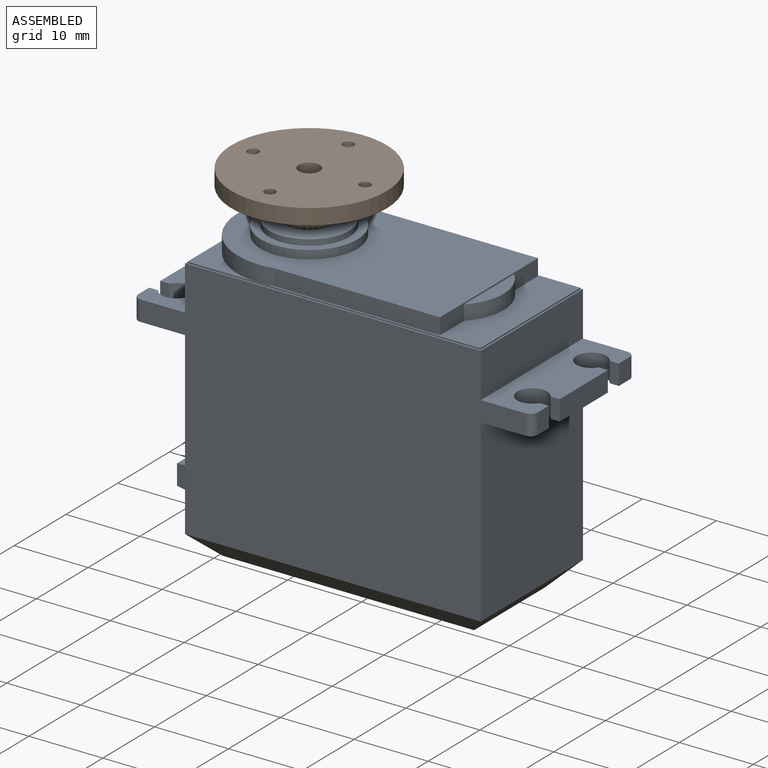
[diagram: assembled view]
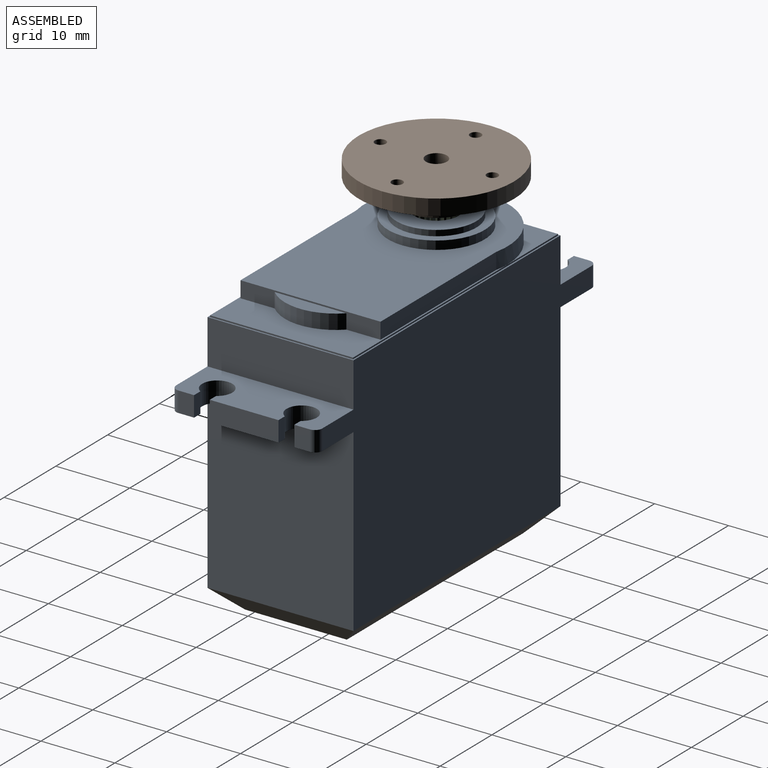
[diagram: assembled view, second angle]
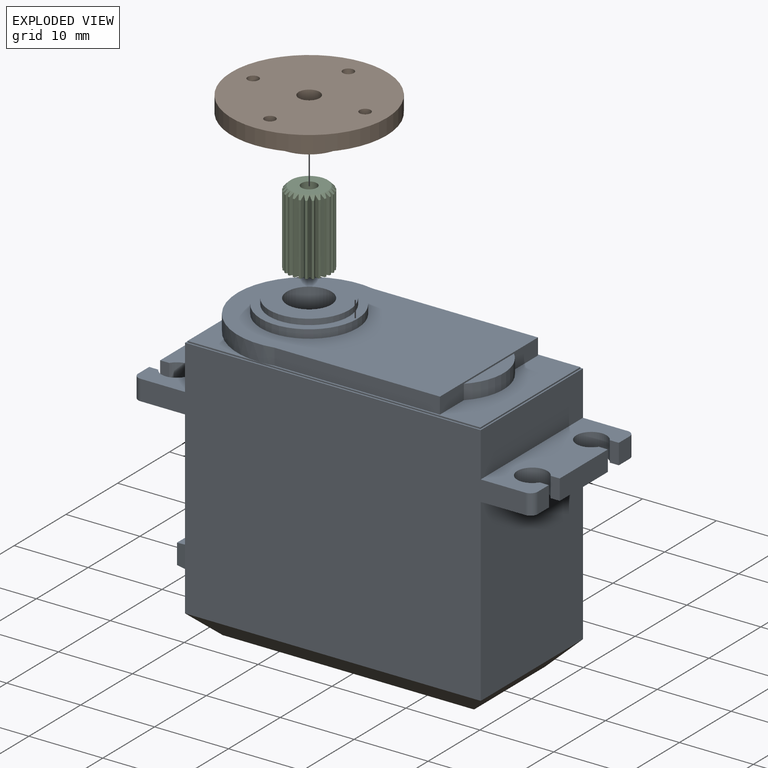
[diagram: exploded view]
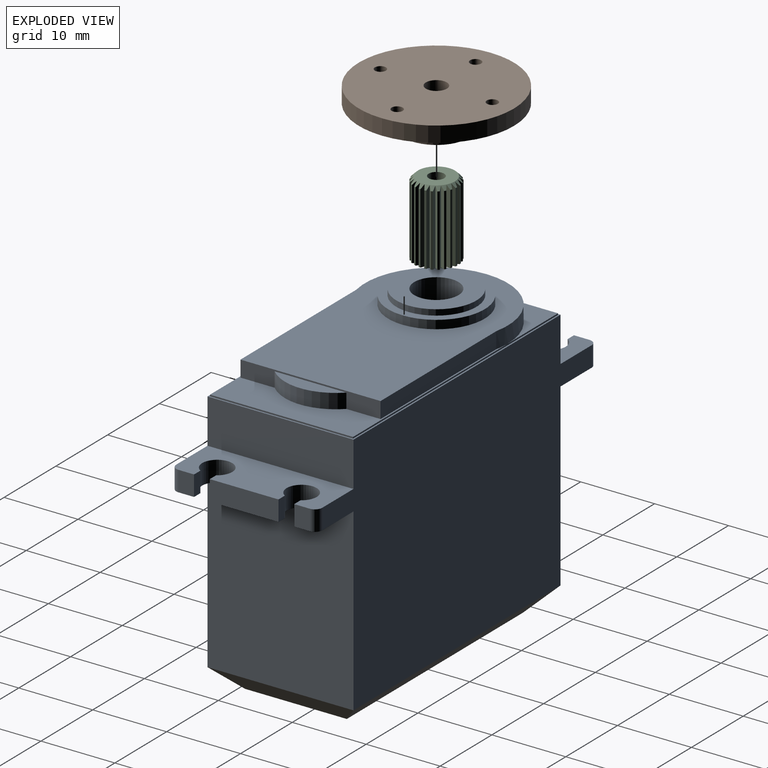
[diagram: exploded view, second angle]
ASSEMBLY  parts=3 mates=2
PART A: 63 faces, bbox 54.1x19.8x40.4 mm
  f0: plane 29.93x19.35mm, normal (0,0,1), area 104.2mm2, adj f10,f11,f13,f37,f38,f39,f40,f42
  f1: plane 9.68x9.68mm, normal (0,0,1), area 20.1mm2, adj f11,f12,f37
  f2: plane 24.33x19.75mm, normal (-1,0,0), area 452.4mm2, adj f6,f8,f36,f52,f58,f59,f60,f61
  f3: plane 24.33x19.75mm, normal (1,0,0), area 480.4mm2, adj f6,f8,f25,f51
  f4: plane 40x19.75mm, normal (0,0,1), area 23.7mm2, adj f5,f6,f7,f8,f10,f11,f12,f13
  f5: plane 19.75x6.03mm, normal (1,0,0), area 119mm2, adj f4,f6,f8,f24
  f6: plane 52.05x33.1mm, normal (0,1,0), area 1357.1mm2, adj f2,f3,f4,f5,f7,f24,f25,f35
  f7: plane 19.75x6.03mm, normal (-1,0,0), area 119mm2, adj f4,f6,f8,f35
  f8: plane 52.05x33.1mm, normal (0,-1,0), area 1357.1mm2, adj f2,f3,f4,f5,f7,f24,f25,f35
  f9: plane 34x13.75mm, normal (0,0,-1), area 467.5mm2, adj f50,f51,f52,f53
  f10: plane 19.35x0.2mm, normal (1,0,0), area 3.9mm2, adj f0,f4,f11,f13
  f11: plane 39.6x0.2mm, normal (0,1,0), area 7.9mm2, adj f0,f1,f4,f10,f12
  f12: plane 19.35x0.2mm, normal (-1,0,0), area 3.9mm2, adj f1,f4,f11,f13,f14
  f13: plane 39.6x0.2mm, normal (0,-1,0), area 7.9mm2, adj f0,f4,f10,f12,f14
  f14: plane 9.68x9.68mm, normal (0,0,1), area 20.1mm2, adj f12,f13,f37
  f15: plane 2.75x2.1mm, normal (1,0,0), area 5.8mm2, adj f16,f24,f25,f54
  f16: plane 2.75x1.22mm, normal (0,1,0), area 3.4mm2, adj f15,f17,f24,f25
  f17: cylinder r=2.04mm len=4.08mm, axis (0,0,-1), area 29.1mm2, adj f16,f18,f24,f25
  f18: plane 2.75x1.22mm, normal (0,-1,0), area 3.4mm2, adj f17,f19,f24,f25
  f19: plane 9.3x2.75mm, normal (1,0,0), area 25.6mm2, adj f18,f20,f24,f25
  f20: plane 2.75x1.22mm, normal (0,1,0), area 3.4mm2, adj f19,f21,f24,f25
  f21: cylinder r=2.04mm len=4.08mm, axis (0,0,-1), area 29.1mm2, adj f20,f22,f24,f25
  f22: plane 2.75x1.22mm, normal (0,-1,0), area 3.4mm2, adj f21,f23,f24,f25
  f23: plane 2.75x2.1mm, normal (1,0,0), area 5.8mm2, adj f22,f24,f25,f55
  f24: plane 19.75x7.03mm, normal (0,0,1), area 107.9mm2, adj f5,f6,f8,f15,f16,f17,f18,f19
  f25: plane 19.75x7.03mm, normal (0,0,-1), area 107.9mm2, adj f3,f6,f8,f15,f16,f17,f18,f19
  f26: plane 2.75x2.1mm, normal (-1,0,0), area 5.8mm2, adj f27,f35,f36,f57
  f27: plane 2.75x1.22mm, normal (0,-1,0), area 3.4mm2, adj f26,f28,f35,f36
  f28: cylinder r=2.04mm len=4.08mm, axis (0,0,-1), area 29.1mm2, adj f27,f29,f35,f36
  f29: plane 2.75x1.22mm, normal (0,1,0), area 3.4mm2, adj f28,f30,f35,f36
  f30: plane 9.3x2.75mm, normal (-1,0,0), area 25.6mm2, adj f29,f31,f35,f36
  f31: plane 2.75x1.22mm, normal (0,-1,0), area 3.4mm2, adj f30,f32,f35,f36
  f32: cylinder r=2.04mm len=4.08mm, axis (0,0,-1), area 29.1mm2, adj f31,f33,f35,f36
  f33: plane 2.75x1.22mm, normal (0,1,0), area 3.4mm2, adj f32,f34,f35,f36
  f34: plane 2.75x2.1mm, normal (-1,0,0), area 5.8mm2, adj f33,f35,f36,f56
  f35: plane 19.75x7.03mm, normal (0,0,1), area 107.9mm2, adj f6,f7,f8,f26,f27,f28,f29,f30
  f36: plane 19.75x7.03mm, normal (0,0,-1), area 107.9mm2, adj f2,f6,f8,f26,f27,f28,f29,f30
  f37: cylinder r=9.67mm len=19.35mm, axis (0,0,-1), area 75.5mm2, adj f0,f1,f14,f38,f40,f41
  f38: plane 22.37x2.2mm, normal (0,-1,0), area 49.2mm2, adj f0,f37,f39,f41
  f39: plane 18.95x2.2mm, normal (1,0,0), area 22.3mm2, adj f0,f38,f40,f41,f42,f43
  f40: plane 22.37x2.2mm, normal (0,1,0), area 49.2mm2, adj f0,f37,f39,f41
  f41: plane 34x19.35mm, normal (0,0,1), area 474.2mm2, adj f37,f38,f39,f40,f44
  f42: cylinder r=6.88mm len=9.7mm, axis (0,0,-1), area 21.5mm2, adj f0,f39,f43
  f43: plane 9.7x2mm, normal (0,0,1), area 13.4mm2, adj f39,f42
  f44: cylinder r=6.54mm len=13.08mm, axis (0,0,-1), area 47.2mm2, adj f41,f45
  f45: plane 13.08x13.08mm, normal (0,0,1), area 41.8mm2, adj f44,f46
  f46: cylinder r=5.42mm len=10.85mm, axis (0,0,-1), area 26.4mm2, adj f45,f47
  f47: plane 10.85x10.85mm, normal (0,0,1), area 64.2mm2, adj f46,f48
  f48: cylinder r=3mm len=6mm, axis (0,0,1), area 113.1mm2, adj f47,f49
  f49: plane 6x6mm, normal (0,0,1), area 28.3mm2, adj f48
  f50: plane 40x3mm, normal (0,-0.71,-0.71), area 157mm2, adj f8,f9,f51,f52
  f51: plane 19.75x3mm, normal (0.71,0,-0.71), area 71.1mm2, adj f3,f9,f50,f53
  f52: plane 19.75x3mm, normal (-0.71,0,-0.71), area 71.1mm2, adj f2,f9,f50,f53
  f53: plane 40x3mm, normal (0,0.71,-0.71), area 157mm2, adj f6,f9,f51,f52
  f54: cylinder r=1mm len=2.75mm, axis (0,0,-1), area 4.3mm2, adj f8,f15,f24,f25
  f55: cylinder r=1mm len=2.75mm, axis (0,0,1), area 4.3mm2, adj f6,f23,f24,f25
  f56: cylinder r=1mm len=2.75mm, axis (0,0,1), area 4.3mm2, adj f8,f34,f35,f36
  f57: cylinder r=1mm len=2.75mm, axis (0,0,-1), area 4.3mm2, adj f6,f26,f35,f36
  f58: plane 6x4mm, normal (-0.1,-0.99,0), area 20.3mm2, adj f2,f59,f61,f62
  f59: plane 7x6mm, normal (-0.1,0,0.99), area 38.4mm2, adj f2,f58,f60,f62
  f60: plane 6x4mm, normal (-0.1,0.99,0), area 20.3mm2, adj f2,f59,f61,f62
  f61: plane 7x6mm, normal (-0.1,0,-0.99), area 38.4mm2, adj f2,f58,f60,f62
  f62: plane 5.74x2.74mm, normal (-1,0,0), area 15.7mm2, adj f58,f59,f60,f61
PART B: 86 faces, bbox 21x5.2x21 mm
  f0: plane 6x5.99mm, normal (0,-1,0), area 18.8mm2, adj f1,f2,f3,f4,f5,f6,f7,f8
  f1: cylinder r=3mm len=3.08mm, axis (0,1,0), area 0.8mm2, adj f0,f35,f36,f85
  f2: cylinder r=3mm len=3.08mm, axis (0,1,0), area 0.8mm2, adj f0,f35,f83,f84
  f3: cylinder r=3mm len=3.08mm, axis (0,1,0), area 0.8mm2, adj f0,f35,f81,f82
  f4: cylinder r=3mm len=3.08mm, axis (0,1,0), area 0.8mm2, adj f0,f35,f79,f80
  f5: cylinder r=3mm len=3.08mm, axis (0,1,0), area 0.8mm2, adj f0,f35,f77,f78
  f6: cylinder r=3mm len=3.08mm, axis (0,1,0), area 0.8mm2, adj f0,f35,f75,f76
  f7: cylinder r=3mm len=3.08mm, axis (0,1,0), area 0.8mm2, adj f0,f35,f73,f74
  f8: cylinder r=3mm len=3.08mm, axis (0,1,0), area 0.8mm2, adj f0,f35,f71,f72
  f9: cylinder r=3mm len=3.08mm, axis (0,1,0), area 0.8mm2, adj f0,f35,f69,f70
  f10: cylinder r=3mm len=3.08mm, axis (0,1,0), area 0.8mm2, adj f0,f35,f67,f68
  f11: cylinder r=3mm len=3.08mm, axis (0,1,0), area 0.8mm2, adj f0,f35,f65,f66
  f12: cylinder r=3mm len=3.08mm, axis (0,1,0), area 0.8mm2, adj f0,f35,f63,f64
  f13: cylinder r=3mm len=3.08mm, axis (0,1,0), area 0.8mm2, adj f0,f35,f61,f62
  f14: cylinder r=3mm len=3.08mm, axis (0,1,0), area 0.8mm2, adj f0,f35,f59,f60
  f15: cylinder r=3mm len=3.08mm, axis (0,1,0), area 0.8mm2, adj f0,f35,f57,f58
  f16: cylinder r=3mm len=3.08mm, axis (0,1,0), area 0.8mm2, adj f0,f35,f55,f56
  f17: cylinder r=3mm len=3.08mm, axis (0,1,0), area 0.8mm2, adj f0,f35,f53,f54
  f18: cylinder r=3mm len=3.08mm, axis (0,1,0), area 0.8mm2, adj f0,f35,f51,f52
  f19: cylinder r=3mm len=3.08mm, axis (0,1,0), area 0.8mm2, adj f0,f35,f49,f50
  f20: cylinder r=3mm len=3.08mm, axis (0,1,0), area 0.8mm2, adj f0,f35,f47,f48
  f21: cylinder r=3mm len=3.08mm, axis (0,1,0), area 0.8mm2, adj f0,f35,f45,f46
  f22: cylinder r=3mm len=3.08mm, axis (0,1,0), area 0.8mm2, adj f0,f35,f43,f44
  f23: cylinder r=3mm len=3.08mm, axis (0,1,0), area 0.8mm2, adj f0,f35,f41,f42
  f24: cylinder r=3mm len=3.08mm, axis (0,1,0), area 0.8mm2, adj f0,f35,f39,f40
  f25: cylinder r=1.43mm len=2.85mm, axis (0,1,0), area 19mm2, adj f0,f32
  f26: cylinder r=0.75mm len=2.13mm, axis (0,1,0), area 10mm2, adj f31,f32
  f27: cylinder r=0.75mm len=2.13mm, axis (0,1,0), area 10mm2, adj f31,f32
  f28: cylinder r=0.75mm len=2.13mm, axis (0,1,0), area 10mm2, adj f31,f32
  f29: cylinder r=0.75mm len=2.13mm, axis (0,1,0), area 10mm2, adj f31,f32
  f30: cylinder r=10.5mm len=21mm, axis (0,1,0), area 140.2mm2, adj f31,f32
  f31: plane 21x21mm, normal (0,-1,0), area 277.4mm2, adj f26,f27,f28,f29,f30,f34
  f32: plane 21x21mm, normal (0,1,0), area 332.9mm2, adj f25,f26,f27,f28,f29,f30
  f33: cylinder r=3mm len=3.08mm, axis (0,1,0), area 0.8mm2, adj f0,f35,f37,f38
  f34: cylinder r=4.44mm len=8.88mm, axis (0,1,0), area 85.7mm2, adj f31,f35
  f35: plane 8.88x8.88mm, normal (0,-1,0), area 36.7mm2, adj f1,f2,f3,f4,f5,f6,f7,f8
  f36: plane 3.08x0.48mm, normal (-0.89,0,-0.46), area 1.7mm2, adj f0,f1,f35,f37
  f37: plane 3.08x0.48mm, normal (0.89,0,-0.46), area 1.7mm2, adj f0,f33,f35,f36
  f38: plane 3.08x0.52mm, normal (-0.97,0,-0.23), area 1.7mm2, adj f0,f33,f35,f39
  f39: plane 3.08x0.4mm, normal (0.74,0,-0.67), area 1.7mm2, adj f0,f24,f35,f38
  f40: plane 3.08x0.54mm, normal (-1,0,0.02), area 1.7mm2, adj f0,f24,f35,f41
  f41: plane 3.08x0.45mm, normal (0.55,0,-0.83), area 1.7mm2, adj f0,f23,f35,f40
  f42: plane 3.08x0.52mm, normal (-0.96,0,0.27), area 1.7mm2, adj f0,f23,f35,f43
  f43: plane 3.08x0.51mm, normal (0.33,0,-0.94), area 1.7mm2, adj f0,f22,f35,f42
  f44: plane 3.08x0.47mm, normal (-0.87,0,0.5), area 1.7mm2, adj f0,f22,f35,f45
  f45: plane 3.08x0.54mm, normal (0.08,0,-1), area 1.7mm2, adj f0,f21,f35,f44
  f46: plane 3.08x0.39mm, normal (-0.72,0,0.7), area 1.7mm2, adj f0,f21,f35,f47
  f47: plane 3.08x0.53mm, normal (-0.17,0,-0.99), area 1.7mm2, adj f0,f20,f35,f46
  f48: plane 3.08x0.46mm, normal (-0.52,0,0.85), area 1.7mm2, adj f0,f20,f35,f49
  f49: plane 3.08x0.49mm, normal (-0.41,0,-0.91), area 1.7mm2, adj f0,f19,f35,f48
  f50: plane 3.08x0.52mm, normal (-0.29,0,0.96), area 1.7mm2, adj f0,f19,f35,f51
  f51: plane 3.08x0.42mm, normal (-0.62,0,-0.78), area 1.7mm2, adj f0,f18,f35,f50
  f52: plane 3.08x0.54mm, normal (-0.04,0,1), area 1.7mm2, adj f0,f18,f35,f53
  f53: plane 3.08x0.43mm, normal (-0.8,0,-0.6), area 1.7mm2, adj f0,f17,f35,f52
  f54: plane 3.08x0.53mm, normal (0.21,0,0.98), area 1.7mm2, adj f0,f17,f35,f55
  f55: plane 3.08x0.5mm, normal (-0.92,0,-0.39), area 1.7mm2, adj f0,f16,f35,f54
  f56: plane 3.08x0.48mm, normal (0.44,0,0.9), area 1.7mm2, adj f0,f16,f35,f57
  f57: plane 3.08x0.53mm, normal (-0.99,0,-0.15), area 1.7mm2, adj f0,f15,f35,f56
  f58: plane 3.08x0.41mm, normal (0.65,0,0.76), area 1.7mm2, adj f0,f15,f35,f59
  f59: plane 3.08x0.54mm, normal (-0.99,0,0.11), area 1.7mm2, adj f0,f14,f35,f58
  f60: plane 3.08x0.44mm, normal (0.82,0,0.57), area 1.7mm2, adj f0,f14,f35,f61
  f61: plane 3.08x0.5mm, normal (-0.94,0,0.35), area 1.7mm2, adj f0,f13,f35,f60
  f62: plane 3.08x0.5mm, normal (0.94,0,0.35), area 1.7mm2, adj f0,f13,f35,f63
  f63: plane 3.08x0.44mm, normal (-0.82,0,0.57), area 1.7mm2, adj f0,f12,f35,f62
  f64: plane 3.08x0.54mm, normal (0.99,0,0.11), area 1.7mm2, adj f0,f12,f35,f65
  f65: plane 3.08x0.41mm, normal (-0.65,0,0.76), area 1.7mm2, adj f0,f11,f35,f64
  f66: plane 3.08x0.53mm, normal (0.99,0,-0.15), area 1.7mm2, adj f0,f11,f35,f67
  f67: plane 3.08x0.48mm, normal (-0.44,0,0.9), area 1.7mm2, adj f0,f10,f35,f66
  f68: plane 3.08x0.5mm, normal (0.92,0,-0.39), area 1.7mm2, adj f0,f10,f35,f69
  f69: plane 3.08x0.53mm, normal (-0.21,0,0.98), area 1.7mm2, adj f0,f9,f35,f68
  f70: plane 3.08x0.43mm, normal (0.8,0,-0.6), area 1.7mm2, adj f0,f9,f35,f71
  f71: plane 3.08x0.54mm, normal (0.04,0,1), area 1.7mm2, adj f0,f8,f35,f70
  f72: plane 3.08x0.42mm, normal (0.62,0,-0.78), area 1.7mm2, adj f0,f8,f35,f73
  f73: plane 3.08x0.52mm, normal (0.29,0,0.96), area 1.7mm2, adj f0,f7,f35,f72
  f74: plane 3.08x0.49mm, normal (0.41,0,-0.91), area 1.7mm2, adj f0,f7,f35,f75
  f75: plane 3.08x0.46mm, normal (0.52,0,0.85), area 1.7mm2, adj f0,f6,f35,f74
  f76: plane 3.08x0.53mm, normal (0.17,0,-0.99), area 1.7mm2, adj f0,f6,f35,f77
  f77: plane 3.08x0.39mm, normal (0.72,0,0.7), area 1.7mm2, adj f0,f5,f35,f76
  f78: plane 3.08x0.54mm, normal (-0.08,0,-1), area 1.7mm2, adj f0,f5,f35,f79
  f79: plane 3.08x0.47mm, normal (0.87,0,0.5), area 1.7mm2, adj f0,f4,f35,f78
  f80: plane 3.08x0.51mm, normal (-0.33,0,-0.94), area 1.7mm2, adj f0,f4,f35,f81
  f81: plane 3.08x0.52mm, normal (0.96,0,0.27), area 1.7mm2, adj f0,f3,f35,f80
  f82: plane 3.08x0.45mm, normal (-0.55,0,-0.83), area 1.7mm2, adj f0,f3,f35,f83
  f83: plane 3.08x0.54mm, normal (1,0,0.02), area 1.7mm2, adj f0,f2,f35,f82
  f84: plane 3.08x0.4mm, normal (-0.74,0,-0.67), area 1.7mm2, adj f0,f2,f35,f85
  f85: plane 3.08x0.52mm, normal (0.97,0,-0.23), area 1.7mm2, adj f0,f1,f35,f84
PART C: 80 faces, bbox 6x6x10.1 mm
  f0: plane 6x5.99mm, normal (0,0,-1), area 25.2mm2, adj f2,f3,f4,f5,f6,f7,f8,f9
  f1: cone r=2.5mm half-angle=45deg, axis (0,0,-1), area 7.9mm2, adj f2,f3,f4,f5,f6,f7,f8,f9
  f2: cylinder r=3mm len=9.58mm, axis (0,0,-1), area 2.4mm2, adj f0,f1,f74,f77
  f3: cylinder r=3mm len=9.58mm, axis (0,0,-1), area 2.4mm2, adj f0,f1,f72,f75
  f4: cylinder r=3mm len=9.58mm, axis (0,0,-1), area 2.4mm2, adj f0,f1,f70,f73
  f5: cylinder r=3mm len=9.58mm, axis (0,0,-1), area 2.4mm2, adj f0,f1,f68,f71
  f6: cylinder r=3mm len=9.58mm, axis (0,0,-1), area 2.4mm2, adj f0,f1,f66,f69
  f7: cylinder r=3mm len=9.58mm, axis (0,0,-1), area 2.4mm2, adj f0,f1,f64,f67
  f8: cylinder r=3mm len=9.58mm, axis (0,0,-1), area 2.4mm2, adj f0,f1,f62,f65
  f9: cylinder r=3mm len=9.58mm, axis (0,0,-1), area 2.4mm2, adj f0,f1,f60,f63
  f10: cylinder r=3mm len=9.58mm, axis (0,0,-1), area 2.4mm2, adj f0,f1,f58,f61
  f11: cylinder r=3mm len=9.58mm, axis (0,0,-1), area 2.4mm2, adj f0,f1,f56,f59
  f12: cylinder r=3mm len=9.58mm, axis (0,0,-1), area 2.4mm2, adj f0,f1,f54,f57
  f13: cylinder r=3mm len=9.58mm, axis (0,0,-1), area 2.4mm2, adj f0,f1,f52,f55
  f14: cylinder r=3mm len=9.58mm, axis (0,0,-1), area 2.4mm2, adj f0,f1,f50,f53
  f15: cylinder r=3mm len=9.58mm, axis (0,0,-1), area 2.4mm2, adj f0,f1,f48,f51
  f16: cylinder r=3mm len=9.58mm, axis (0,0,-1), area 2.4mm2, adj f0,f1,f46,f49
  f17: cylinder r=3mm len=9.58mm, axis (0,0,-1), area 2.4mm2, adj f0,f1,f44,f47
  f18: cylinder r=3mm len=9.58mm, axis (0,0,-1), area 2.4mm2, adj f0,f1,f42,f45
  f19: cylinder r=3mm len=9.58mm, axis (0,0,-1), area 2.4mm2, adj f0,f1,f40,f43
  f20: cylinder r=3mm len=9.58mm, axis (0,0,-1), area 2.4mm2, adj f0,f1,f38,f41
  f21: cylinder r=3mm len=9.58mm, axis (0,0,-1), area 2.4mm2, adj f0,f1,f36,f39
  f22: cylinder r=3mm len=9.58mm, axis (0,0,-1), area 2.4mm2, adj f0,f1,f34,f37
  f23: cylinder r=3mm len=9.58mm, axis (0,0,-1), area 2.4mm2, adj f0,f1,f32,f35
  f24: cylinder r=3mm len=9.58mm, axis (0,0,-1), area 2.4mm2, adj f0,f1,f30,f33
  f25: cylinder r=3mm len=9.58mm, axis (0,0,-1), area 2.4mm2, adj f0,f1,f28,f31
  f26: cylinder r=3mm len=9.58mm, axis (0,0,-1), area 2.4mm2, adj f0,f1,f29,f76
  f27: plane 5x5mm, normal (0,0,1), area 16.2mm2, adj f1,f78
  f28: plane 10.06x0.48mm, normal (0.89,0.46,0), area 5.3mm2, adj f0,f1,f25,f29
  f29: plane 10.06x0.48mm, normal (-0.89,0.46,0), area 5.3mm2, adj f0,f1,f26,f28
  f30: plane 10.06x0.4mm, normal (0.74,0.67,0), area 5.3mm2, adj f0,f1,f24,f31
  f31: plane 10.06x0.52mm, normal (-0.97,0.23,0), area 5.3mm2, adj f0,f1,f25,f30
  f32: plane 10.06x0.45mm, normal (0.55,0.83,0), area 5.3mm2, adj f0,f1,f23,f33
  f33: plane 10.06x0.54mm, normal (-1,-0.02,0), area 5.3mm2, adj f0,f1,f24,f32
  f34: plane 10.06x0.51mm, normal (0.33,0.94,0), area 5.3mm2, adj f0,f1,f22,f35
  f35: plane 10.06x0.52mm, normal (-0.96,-0.27,0), area 5.3mm2, adj f0,f1,f23,f34
  f36: plane 10.06x0.54mm, normal (0.08,1,0), area 5.3mm2, adj f0,f1,f21,f37
  f37: plane 10.06x0.47mm, normal (-0.87,-0.5,0), area 5.3mm2, adj f0,f1,f22,f36
  f38: plane 10.06x0.53mm, normal (-0.17,0.99,0), area 5.3mm2, adj f0,f1,f20,f39
  f39: plane 10.06x0.39mm, normal (-0.72,-0.7,0), area 5.3mm2, adj f0,f1,f21,f38
  f40: plane 10.06x0.49mm, normal (-0.41,0.91,0), area 5.3mm2, adj f0,f1,f19,f41
  f41: plane 10.06x0.46mm, normal (-0.52,-0.85,0), area 5.3mm2, adj f0,f1,f20,f40
  f42: plane 10.06x0.42mm, normal (-0.62,0.78,0), area 5.3mm2, adj f0,f1,f18,f43
  f43: plane 10.06x0.52mm, normal (-0.29,-0.96,0), area 5.3mm2, adj f0,f1,f19,f42
  f44: plane 10.06x0.43mm, normal (-0.8,0.6,0), area 5.3mm2, adj f0,f1,f17,f45
  f45: plane 10.06x0.54mm, normal (-0.04,-1,0), area 5.3mm2, adj f0,f1,f18,f44
  f46: plane 10.06x0.5mm, normal (-0.92,0.39,0), area 5.3mm2, adj f0,f1,f16,f47
  f47: plane 10.06x0.53mm, normal (0.21,-0.98,0), area 5.3mm2, adj f0,f1,f17,f46
  f48: plane 10.06x0.53mm, normal (-0.99,0.15,0), area 5.3mm2, adj f0,f1,f15,f49
  f49: plane 10.06x0.48mm, normal (0.44,-0.9,0), area 5.3mm2, adj f0,f1,f16,f48
  f50: plane 10.06x0.54mm, normal (-0.99,-0.11,0), area 5.3mm2, adj f0,f1,f14,f51
  f51: plane 10.06x0.41mm, normal (0.65,-0.76,0), area 5.3mm2, adj f0,f1,f15,f50
  f52: plane 10.06x0.51mm, normal (-0.94,-0.35,0), area 5.3mm2, adj f0,f1,f13,f53
  f53: plane 10.06x0.44mm, normal (0.82,-0.57,0), area 5.3mm2, adj f0,f1,f14,f52
  f54: plane 10.06x0.44mm, normal (-0.82,-0.57,0), area 5.3mm2, adj f0,f1,f12,f55
  f55: plane 10.06x0.51mm, normal (0.94,-0.35,0), area 5.3mm2, adj f0,f1,f13,f54
  f56: plane 10.06x0.41mm, normal (-0.65,-0.76,0), area 5.3mm2, adj f0,f1,f11,f57
  f57: plane 10.06x0.54mm, normal (0.99,-0.11,0), area 5.3mm2, adj f0,f1,f12,f56
  f58: plane 10.06x0.48mm, normal (-0.44,-0.9,0), area 5.3mm2, adj f0,f1,f10,f59
  f59: plane 10.06x0.53mm, normal (0.99,0.15,0), area 5.3mm2, adj f0,f1,f11,f58
  f60: plane 10.06x0.53mm, normal (-0.21,-0.98,0), area 5.3mm2, adj f0,f1,f9,f61
  f61: plane 10.06x0.5mm, normal (0.92,0.39,0), area 5.3mm2, adj f0,f1,f10,f60
  f62: plane 10.06x0.54mm, normal (0.04,-1,0), area 5.3mm2, adj f0,f1,f8,f63
  f63: plane 10.06x0.43mm, normal (0.8,0.6,0), area 5.3mm2, adj f0,f1,f9,f62
  f64: plane 10.06x0.52mm, normal (0.29,-0.96,0), area 5.3mm2, adj f0,f1,f7,f65
  f65: plane 10.06x0.42mm, normal (0.62,0.78,0), area 5.3mm2, adj f0,f1,f8,f64
  f66: plane 10.06x0.46mm, normal (0.52,-0.85,0), area 5.3mm2, adj f0,f1,f6,f67
  f67: plane 10.06x0.49mm, normal (0.41,0.91,0), area 5.3mm2, adj f0,f1,f7,f66
  f68: plane 10.06x0.39mm, normal (0.72,-0.7,0), area 5.3mm2, adj f0,f1,f5,f69
  f69: plane 10.06x0.53mm, normal (0.17,0.99,0), area 5.3mm2, adj f0,f1,f6,f68
  f70: plane 10.06x0.47mm, normal (0.87,-0.5,0), area 5.3mm2, adj f0,f1,f4,f71
  f71: plane 10.06x0.54mm, normal (-0.08,1,0), area 5.3mm2, adj f0,f1,f5,f70
  f72: plane 10.06x0.52mm, normal (0.96,-0.27,0), area 5.3mm2, adj f0,f1,f3,f73
  f73: plane 10.06x0.51mm, normal (-0.33,0.94,0), area 5.3mm2, adj f0,f1,f4,f72
  f74: plane 10.06x0.54mm, normal (1,-0.02,0), area 5.3mm2, adj f0,f1,f2,f75
  f75: plane 10.06x0.45mm, normal (-0.55,0.83,0), area 5.3mm2, adj f0,f1,f3,f74
  f76: plane 10.06x0.52mm, normal (0.97,0.23,0), area 5.3mm2, adj f0,f1,f26,f77
  f77: plane 10.06x0.4mm, normal (-0.74,0.67,0), area 5.3mm2, adj f0,f1,f2,f76
  f78: cylinder r=1.05mm len=6mm, axis (0,0,1), area 39.6mm2, adj f27,f79
  f79: plane 2.1x2.1mm, normal (0,0,1), area 3.5mm2, adj f78
PLACE A t=(20.77,8.95,-7.94)mm
PLACE B rot(axis=(1,0,0),90deg) t=(10.65,8.95,11.36)mm
PLACE C t=(10.65,8.95,-0.84)mm
MATE fastened B.f1 <-> C.f78  axis (0,0,-1) through (10.65,8.95,9.23)mm
MATE fastened A.f48 <-> C.f78  axis (0,0,1) through (10.65,8.95,-0.84)mm
